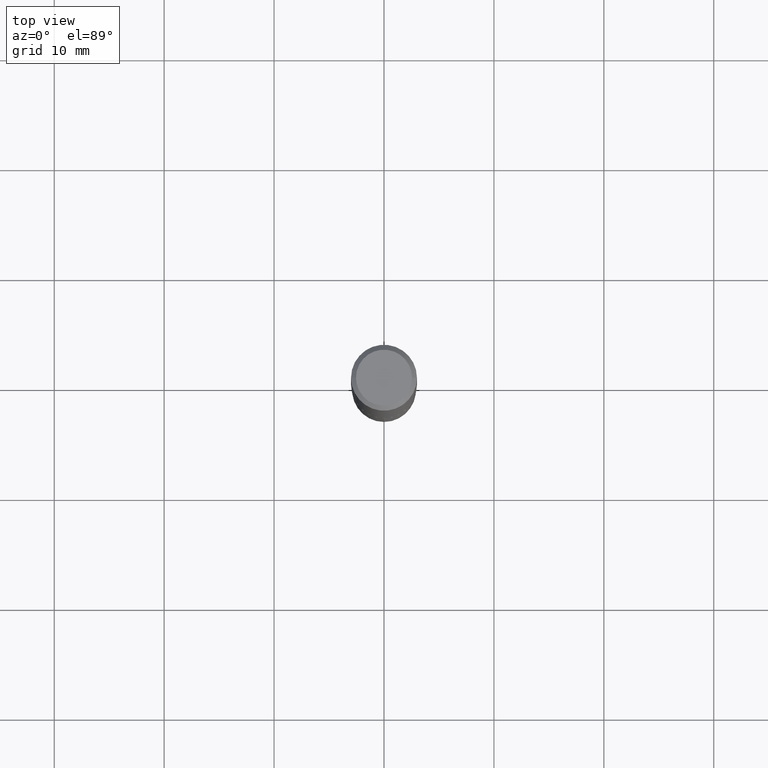
[diagram: clean part render]
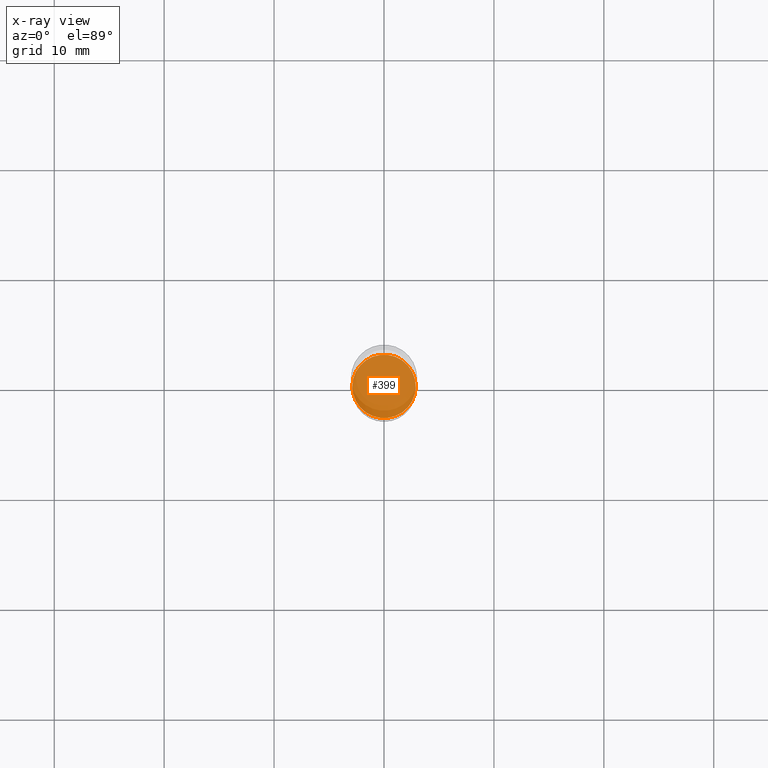
[diagram: x-ray — body ghosted, one internal face saturated and labeled with its STEP entity id]
A machine part, top view, then the same camera in x-ray: the body is ghosted and one INTERNAL B-rep face — a face not visible from any outside direction — is saturated and labeled: STEP entity #399.
In plain terms, the highlighted planar face has unit normal (-0, 0, 1).
Its self-contained STEP definition (entity closure, byte-faithful):
#41 = ORIENTED_EDGE ( 'NONE', *, *, #334, .F. ) ;
#87 = VERTEX_POINT ( 'NONE', #298 ) ;
#90 = CARTESIAN_POINT ( 'NONE',  ( 4.428744008001282238E-29, -6.323072704644935995E-15, -1.810999999999999943 ) ) ;
#102 = CARTESIAN_POINT ( 'NONE',  ( 0.1136500000000000010, -7.116686412963979916E-15, -1.810999999999999943 ) ) ;
#121 = ORIENTED_EDGE ( 'NONE', *, *, #308, .F. ) ;
#140 = AXIS2_PLACEMENT_3D ( 'NONE', #279, #352, #390 ) ;
#166 = CARTESIAN_POINT ( 'NONE',  ( 4.428744008001282238E-29, -6.323072704644935995E-15, -1.810999999999999943 ) ) ;
#277 = PLANE ( 'NONE',  #291 ) ;
#279 = CARTESIAN_POINT ( 'NONE',  ( 4.428744008001282238E-29, -6.323072704644935995E-15, -1.810999999999999943 ) ) ;
#291 = AXIS2_PLACEMENT_3D ( 'NONE', #90, #457, #454 ) ;
#298 = CARTESIAN_POINT ( 'NONE',  ( -0.1136500000000000010, -5.512891658279470728E-15, -1.810999999999999943 ) ) ;
#307 = DIRECTION ( 'NONE',  ( -2.445468806185136597E-29, 3.491481338843145583E-15, 1.000000000000000000 ) ) ;
#308 = EDGE_CURVE ( 'NONE', #368, #87, #421, .T. ) ;
#334 = EDGE_CURVE ( 'NONE', #87, #368, #490, .T. ) ;
#352 = DIRECTION ( 'NONE',  ( -2.445468806185136597E-29, 3.491481338843145583E-15, 1.000000000000000000 ) ) ;
#368 = VERTEX_POINT ( 'NONE', #102 ) ;
#390 = DIRECTION ( 'NONE',  ( 1.000000000000000000, -6.982962677686269077E-15, 0.000000000000000000 ) ) ;
#399 = ADVANCED_FACE ( 'NONE', ( #420 ), #277, .F. ) ;
#414 = AXIS2_PLACEMENT_3D ( 'NONE', #166, #307, #456 ) ;
#420 = FACE_OUTER_BOUND ( 'NONE', #427, .T. ) ;
#421 = CIRCLE ( 'NONE', #140, 0.1136500000000000010 ) ;
#427 = EDGE_LOOP ( 'NONE', ( #121, #41 ) ) ;
#454 = DIRECTION ( 'NONE',  ( 1.000000000000000000, -6.982962677686265922E-15, 4.876176775795935793E-29 ) ) ;
#456 = DIRECTION ( 'NONE',  ( 1.000000000000000000, -6.982962677686269077E-15, 0.000000000000000000 ) ) ;
#457 = DIRECTION ( 'NONE',  ( -2.438088387897960049E-29, 3.491481338843145188E-15, 1.000000000000000000 ) ) ;
#490 = CIRCLE ( 'NONE', #414, 0.1136500000000000010 ) ;